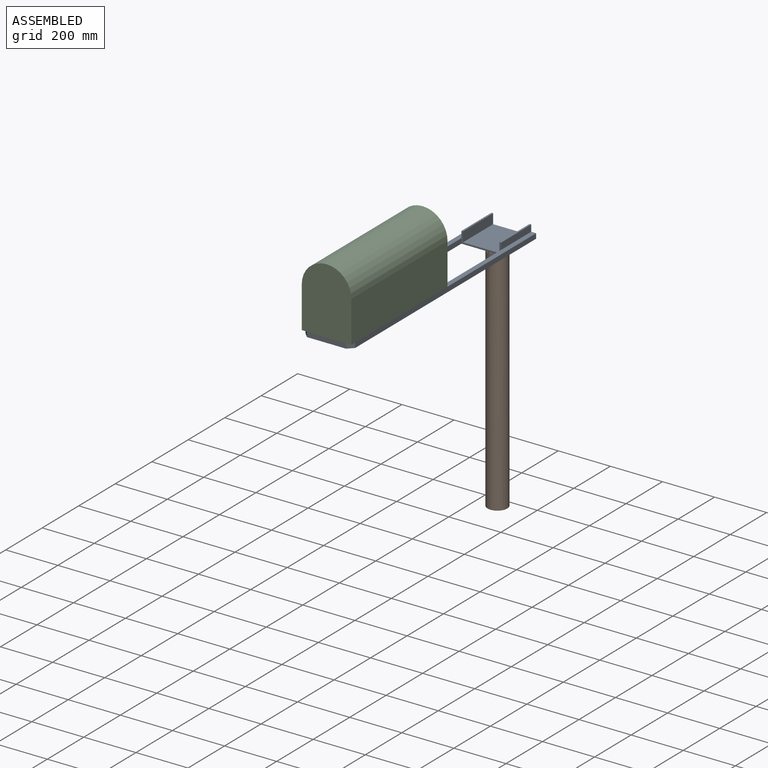
[diagram: assembled view]
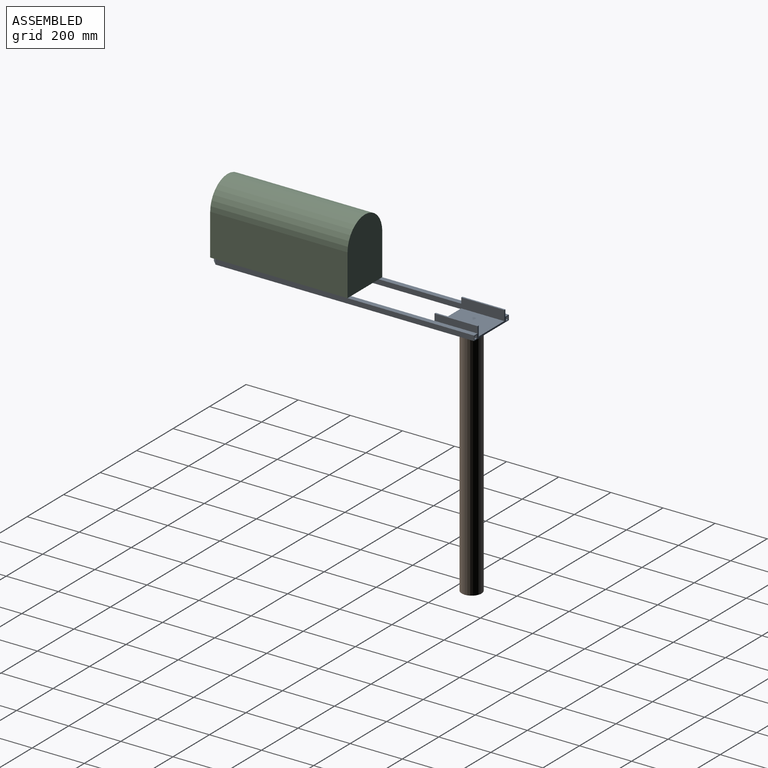
[diagram: assembled view, second angle]
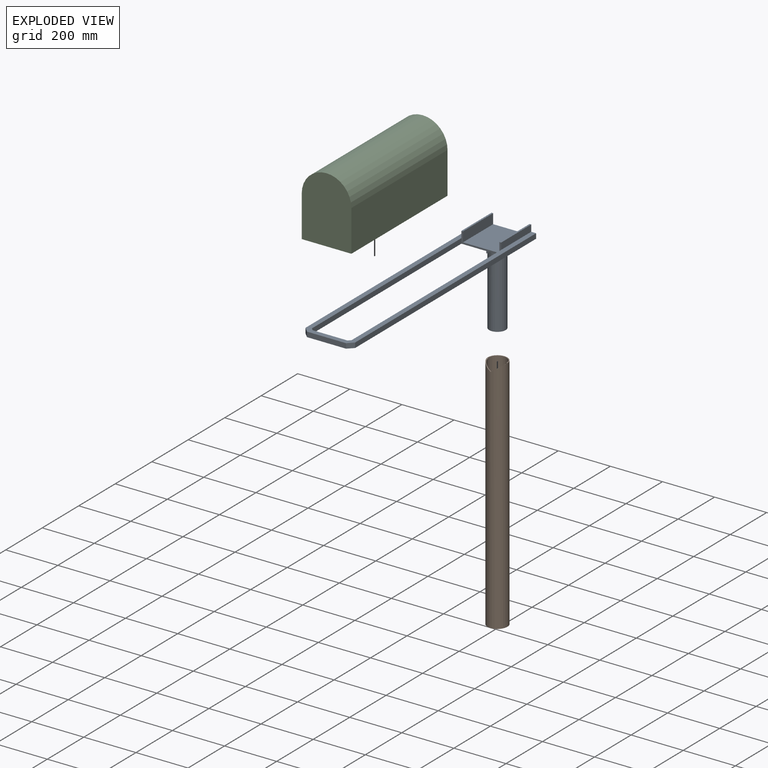
[diagram: exploded view]
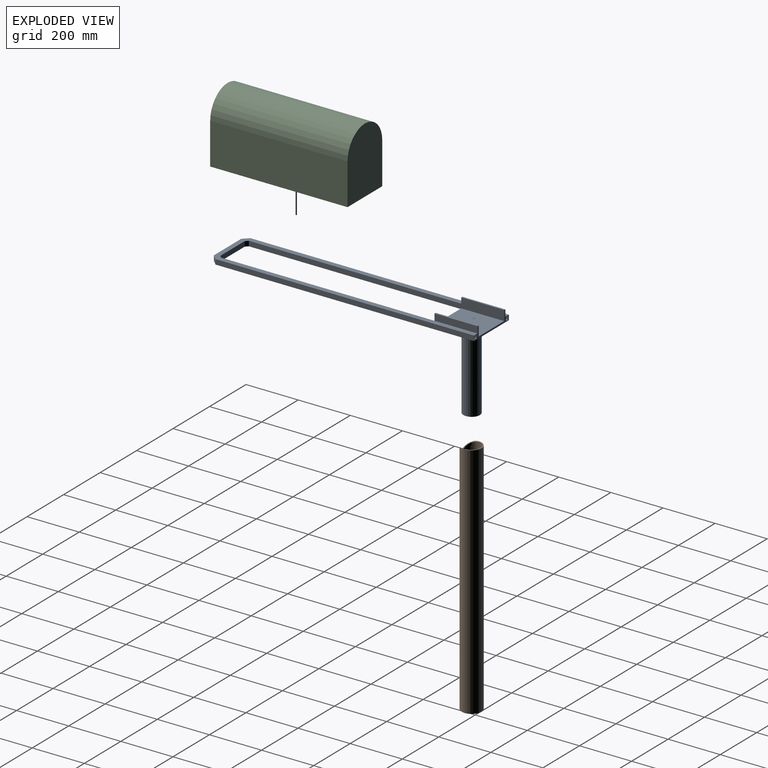
[diagram: exploded view, second angle]
ASSEMBLY  parts=3 mates=4
PART A: 41 faces, bbox 190.5x1012.8x349.3 mm
  f0: cylinder r=28.57mm len=304.8mm, axis (0,0,1), area 54724.4mm2, adj f2,f17
  f1: cylinder r=31.75mm len=304.8mm, axis (0,0,1), area 60643.3mm2, adj f2,f3,f5,f6,f16
  f2: plane 63.5x63.5mm, normal (0,0,-1), area 601.7mm2, adj f0,f1
  f3: plane 25.56x25.4mm, normal (-1,0,0), area 649.2mm2, adj f1,f4,f6,f16
  f4: plane 25.4x6.35mm, normal (0,-1,0), area 161.3mm2, adj f3,f5,f6,f16
  f5: plane 25.56x25.4mm, normal (1,0,0), area 649.2mm2, adj f1,f4,f6,f16
  f6: plane 25.56x6.35mm, normal (0,0,-1), area 161.6mm2, adj f1,f3,f4,f5
  f7: plane 190.5x44.45mm, normal (0,1,0), area 1854.8mm2, adj f9,f10,f11,f12,f13,f14,f15,f16
  f8: plane 152.4x44.45mm, normal (0,-1,0), area 1451.6mm2, adj f9,f10,f11,f12,f13,f14,f15,f16
  f9: plane 165.1x38.1mm, normal (-1,0,0), area 6290.3mm2, adj f7,f8,f10,f15
  f10: plane 165.1x6.35mm, normal (0,0,1), area 1048.4mm2, adj f7,f8,f9,f11
  f11: plane 165.1x25.4mm, normal (1,0,0), area 4193.5mm2, adj f7,f8,f10,f27
  f12: plane 165.1x25.4mm, normal (-1,0,0), area 4193.5mm2, adj f7,f8,f13,f27
  f13: plane 165.1x6.35mm, normal (0,0,1), area 1048.4mm2, adj f7,f8,f12,f14
  f14: plane 165.1x38.1mm, normal (1,0,0), area 6290.3mm2, adj f7,f8,f13,f15
  f15: plane 165.1x139.7mm, normal (0,0,1), area 23064.5mm2, adj f7,f8,f9,f14
  f16: plane 1012.83x190.5mm, normal (0,0,-1), area 62994.6mm2, adj f1,f3,f4,f5,f7,f8,f18,f19
  f17: plane 57.15x57.15mm, normal (0,0,-1), area 2565.2mm2, adj f0
  f18: plane 819.47x19.05mm, normal (-1,0,0), area 15610.9mm2, adj f8,f16,f26,f27
  f19: plane 819.47x19.05mm, normal (1,0,0), area 15610.9mm2, adj f8,f16,f22,f27
  f20: plane 992.46x19.05mm, normal (-1,0,0), area 18906.4mm2, adj f7,f16,f21,f27
  f21: plane 20.37x20.37mm, normal (-0.71,-0.71,0), area 548.7mm2, adj f16,f20,f23,f27
  f22: plane 19.05x9.21mm, normal (0.71,0.71,0), area 248mm2, adj f16,f19,f24,f27
  f23: plane 149.77x19.05mm, normal (0,-1,0), area 2853.1mm2, adj f16,f21,f25,f27
  f24: plane 133.99x19.05mm, normal (0,1,0), area 2552.5mm2, adj f16,f22,f26,f27
  f25: plane 20.37x20.37mm, normal (0.71,-0.71,0), area 548.7mm2, adj f16,f23,f27,f28
  f26: plane 19.05x9.21mm, normal (-0.71,0.71,0), area 248mm2, adj f16,f18,f24,f27
  f27: plane 1012.83x190.5mm, normal (0,0,1), area 41161.9mm2, adj f7,f11,f12,f18,f19,f20,f21,f22
  f28: plane 992.46x19.05mm, normal (1,0,0), area 18906.4mm2, adj f7,f16,f25,f27
  f29: plane 985.88x12.7mm, normal (-1,0,0), area 12520.7mm2, adj f7,f32,f38,f40
  f30: plane 991.14x12.7mm, normal (1,0,0), area 12587.5mm2, adj f7,f31,f38,f40
  f31: plane 18.51x18.51mm, normal (0.71,0.71,0), area 332.4mm2, adj f30,f33,f38,f40
  f32: plane 12.7x11.07mm, normal (-0.71,-0.71,0), area 198.7mm2, adj f29,f34,f38,f40
  f33: plane 147.14x12.7mm, normal (0,1,0), area 1868.7mm2, adj f31,f35,f38,f40
  f34: plane 136.62x12.7mm, normal (0,-1,0), area 1735.1mm2, adj f32,f36,f38,f40
  f35: plane 18.51x18.51mm, normal (-0.71,0.71,0), area 332.4mm2, adj f33,f37,f38,f40
  f36: plane 12.7x11.07mm, normal (0.71,-0.71,0), area 198.7mm2, adj f34,f38,f39,f40
  f37: plane 991.14x12.7mm, normal (-1,0,0), area 12587.5mm2, adj f7,f35,f38,f40
  f38: plane 1009.65x184.15mm, normal (0,0,-1), area 27441.2mm2, adj f7,f29,f30,f31,f32,f33,f34,f35
  f39: plane 985.88x12.7mm, normal (1,0,0), area 12520.7mm2, adj f7,f36,f38,f40
  f40: plane 1009.65x184.15mm, normal (0,0,1), area 27441.2mm2, adj f7,f29,f30,f31,f32,f33,f34,f35
PART B: 8 faces, bbox 76.2x76.2x914.4 mm
  f0: cylinder r=34.92mm len=914.4mm, axis (0,0,-1), area 199495.6mm2, adj f2,f3,f4,f5,f6,f7
  f1: cylinder r=38.1mm len=914.4mm, axis (0,0,-1), area 217792.9mm2, adj f2,f3,f4,f5
  f2: plane 76.2x38.1mm, normal (0,0,1), area 364.2mm2, adj f0,f1,f6,f7
  f3: plane 76.2x76.2mm, normal (0,0,-1), area 728.4mm2, adj f0,f1
  f4: plane 38.1x38.1mm, normal (0.55,0,0.83), area 218.9mm2, adj f0,f1,f5,f6
  f5: plane 38.1x38.1mm, normal (-0.55,0,0.83), area 218.9mm2, adj f0,f1,f4,f7
  f6: plane 3.18x2.12mm, normal (0,-1,0), area 3.4mm2, adj f0,f2,f4
  f7: plane 3.18x2.12mm, normal (0,-1,0), area 3.4mm2, adj f0,f2,f5
PART C: 6 faces, bbox 190.5x527.1x254 mm
  f0: cylinder r=95.25mm len=527.05mm, axis (0,1,0), area 157712.7mm2, adj f1,f3,f4,f5
  f1: plane 527.05x158.75mm, normal (-1,0,0), area 83669.2mm2, adj f0,f2,f4,f5
  f2: plane 527.05x190.5mm, normal (0,0,-1), area 100403mm2, adj f1,f3,f4,f5
  f3: plane 527.05x158.75mm, normal (1,0,0), area 83669.2mm2, adj f0,f2,f4,f5
  f4: plane 254x190.5mm, normal (0,-1,0), area 44493mm2, adj f0,f1,f2,f3
  f5: plane 254x190.5mm, normal (0,1,0), area 44493mm2, adj f0,f1,f2,f3
PLACE A t=(11.21,-5.85,950.19)mm
PLACE B t=(11.21,-5.85,28.15)mm
PLACE C t=(11.21,-415.42,969.24)mm
MATE planar A.f20 <-> C.f1  axis (-1,0,0) through (-84.04,-425.88,959.71)mm
MATE planar C.f4 <-> A.f23  axis (0,-1,0) through (11.21,-942.47,1086.99)mm
MATE planar A.f27 <-> C.f2  axis (0,0,1) through (11.21,-467.07,969.24)mm
MATE cylindrical A.f1 <-> B.f0  axis (0,0,1) through (11.21,-5.85,950.19)mm
